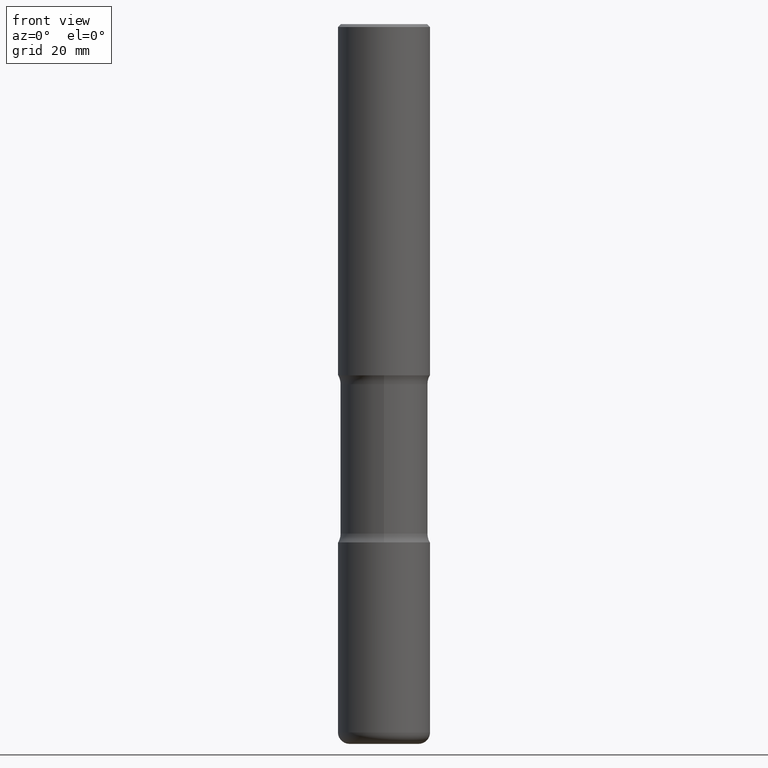
[diagram: clean part render]
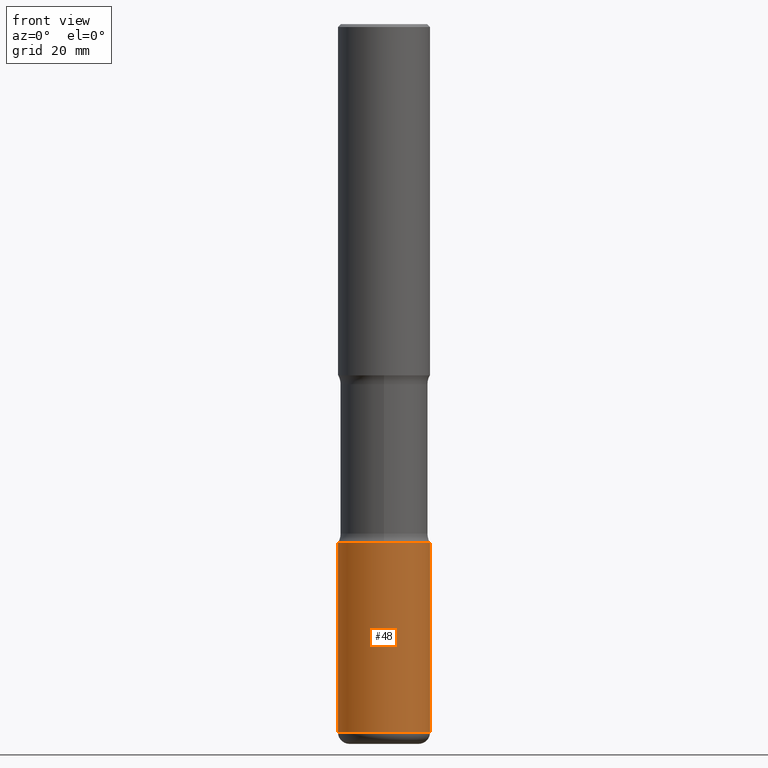
[diagram: same view with one face highlighted and labeled with its STEP entity id]
A machine part, front view. The second image highlights one B-rep face of the part: STEP entity #48.
In plain terms, the highlighted cylindrical surface (partial cylindrical patch) has radius 7.9997 mm, axis along (-0, 0, 1).
Its self-contained STEP definition (entity closure, byte-faithful):
#4 = DIRECTION ( 'NONE',  ( 1.000000000000000000, -6.982962677686263555E-15, 0.000000000000000000 ) ) ;
#10 = LINE ( 'NONE', #525, #83 ) ;
#28 = VERTEX_POINT ( 'NONE', #421 ) ;
#45 = ORIENTED_EDGE ( 'NONE', *, *, #436, .F. ) ;
#48 = ADVANCED_FACE ( 'NONE', ( #416 ), #80, .T. ) ;
#57 = VERTEX_POINT ( 'NONE', #185 ) ;
#65 = ORIENTED_EDGE ( 'NONE', *, *, #354, .T. ) ;
#74 = EDGE_CURVE ( 'NONE', #533, #57, #292, .T. ) ;
#79 = CARTESIAN_POINT ( 'NONE',  ( 8.665029620955796311E-29, -1.237136582792292023E-14, -3.543300000000000782 ) ) ;
#80 = CYLINDRICAL_SURFACE ( 'NONE', #291, 0.3149500000000003408 ) ;
#83 = VECTOR ( 'NONE', #143, 39.37007874015748143 ) ;
#95 = DIRECTION ( 'NONE',  ( -2.445468806185136597E-29, 3.491481338843145583E-15, 1.000000000000000000 ) ) ;
#125 = CARTESIAN_POINT ( 'NONE',  ( 1.184242724083213993E-28, -1.690784753148181059E-14, -4.842599999999999127 ) ) ;
#143 = DIRECTION ( 'NONE',  ( -2.445468806185136877E-29, 3.491481338843145188E-15, 1.000000000000000000 ) ) ;
#144 = EDGE_CURVE ( 'NONE', #246, #28, #160, .T. ) ;
#160 = CIRCLE ( 'NONE', #312, 0.3149500000000003963 ) ;
#176 = DIRECTION ( 'NONE',  ( -2.445468806185136597E-29, 3.491481338843145583E-15, 1.000000000000000000 ) ) ;
#185 = CARTESIAN_POINT ( 'NONE',  ( 0.3149500000000002853, -1.457064992326021168E-14, -3.543300000000000782 ) ) ;
#194 = EDGE_LOOP ( 'NONE', ( #45, #550, #65, #538 ) ) ;
#196 = DIRECTION ( 'NONE',  ( 1.000000000000000000, -6.982962677686267499E-15, 4.876176775795936353E-29 ) ) ;
#210 = VECTOR ( 'NONE', #518, 39.37007874015748143 ) ;
#220 = AXIS2_PLACEMENT_3D ( 'NONE', #79, #176, #4 ) ;
#225 = CARTESIAN_POINT ( 'NONE',  ( -0.3149500000000002853, -1.240175233342592784E-14, -3.543300000000000782 ) ) ;
#246 = VERTEX_POINT ( 'NONE', #514 ) ;
#291 = AXIS2_PLACEMENT_3D ( 'NONE', #484, #95, #196 ) ;
#292 = CIRCLE ( 'NONE', #220, 0.3149500000000002853 ) ;
#297 = DIRECTION ( 'NONE',  ( 1.000000000000000000, -6.982962677686267499E-15, 0.000000000000000000 ) ) ;
#312 = AXIS2_PLACEMENT_3D ( 'NONE', #125, #462, #297 ) ;
#354 = EDGE_CURVE ( 'NONE', #28, #57, #440, .T. ) ;
#416 = FACE_OUTER_BOUND ( 'NONE', #194, .T. ) ;
#421 = CARTESIAN_POINT ( 'NONE',  ( 0.3149500000000003963, -1.910713162681910519E-14, -4.842599999999999127 ) ) ;
#435 = CARTESIAN_POINT ( 'NONE',  ( 0.3149500000000003408, -2.199284095337292237E-15, 1.535751875536931811E-29 ) ) ;
#436 = EDGE_CURVE ( 'NONE', #246, #533, #10, .T. ) ;
#440 = LINE ( 'NONE', #435, #210 ) ;
#462 = DIRECTION ( 'NONE',  ( -2.445468806185136597E-29, 3.491481338843145583E-15, 1.000000000000000000 ) ) ;
#484 = CARTESIAN_POINT ( 'NONE',  ( 0.000000000000000000, 0.000000000000000000, 0.000000000000000000 ) ) ;
#514 = CARTESIAN_POINT ( 'NONE',  ( -0.3149500000000003963, -1.466999318520537460E-14, -4.842599999999999127 ) ) ;
#518 = DIRECTION ( 'NONE',  ( -2.445468806185136877E-29, 3.491481338843145188E-15, 1.000000000000000000 ) ) ;
#525 = CARTESIAN_POINT ( 'NONE',  ( -0.3149500000000003408, 2.237854346276437957E-15, -1.549218606675784358E-29 ) ) ;
#533 = VERTEX_POINT ( 'NONE', #225 ) ;
#538 = ORIENTED_EDGE ( 'NONE', *, *, #74, .F. ) ;
#550 = ORIENTED_EDGE ( 'NONE', *, *, #144, .T. ) ;